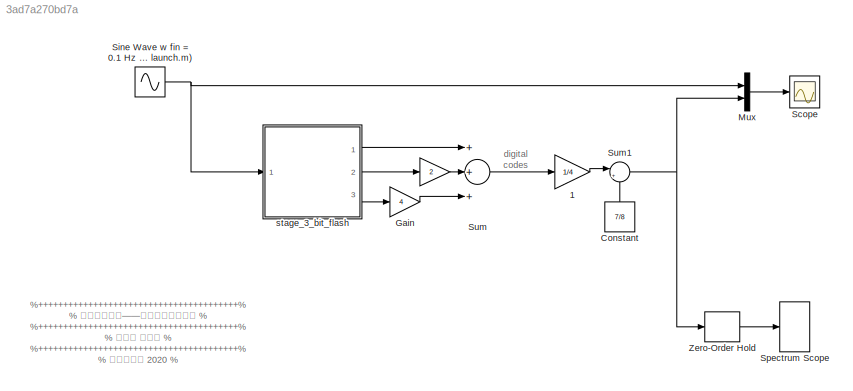
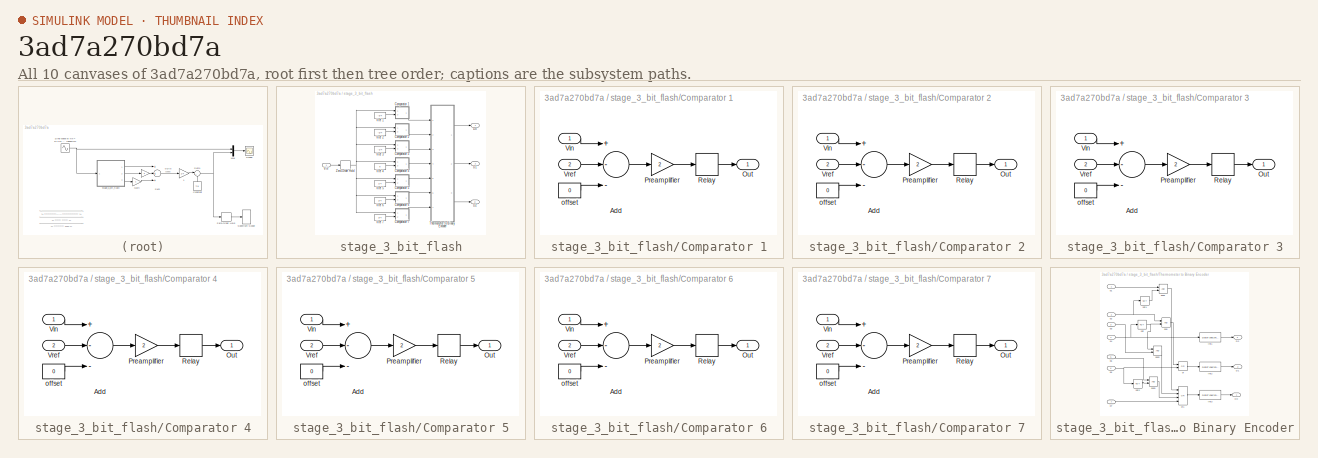
[diagram: thumbnail index - all 10 canvases of the model, root first then tree order]
MODEL slx_3ad7a270bd7a
KIND model
BLOCK [Gain]  
  Gain = 2
  OutDataTypeStr = Inherit: Inherit via internal rule
  ParamDataTypeStr = Inherit: Inherit via internal rule
  SaturateOnIntegerOverflow = off
BLOCK [Gain]  1
  Gain = 1/4
  OutDataTypeStr = Inherit: Inherit via internal rule
  ParamDataTypeStr = Inherit: Inherit via internal rule
  SaturateOnIntegerOverflow = off
BLOCK [Constant] Constant
  Value = 7/8
BLOCK [Gain] Gain
  Gain = 4
  OutDataTypeStr = Inherit: Inherit via internal rule
  ParamDataTypeStr = Inherit: Inherit via internal rule
  SaturateOnIntegerOverflow = off
BLOCK [Mux] Mux
  DisplayOption = bar
  Inputs = 2
  Ports = [2, 1]
BLOCK [Scope] Scope
  Floating = off
  MaxDataPoints = 50
  NumInputPorts = 1
  Ports = [1]
  SampleTime = 0
  SaveName = ScopeData1
  ShowLegends = off
  YMax = 1
  YMin = -1
BLOCK [Sin] Sine Wave w fin = 0.1 Hz (set in launch.m)
  Frequency = 2*pi*fin
  Ports = [0, 1]
  SampleTime = 0
BLOCK [SpectrumAnalyzer] Spectrum Scope
  Ports = [1]
  ScopeSpecificationString = spbscopes.SpectrumAnalyzerBlockCfg('CurrentConfiguration', extmgr.ConfigurationSet(extmgr.Configuration('Core','General UI',true),extmgr.Configuration('Core','Source UI',true),extmgr.Configuration('Sources','WiredSimulink',true),extmgr.Configuration('Sources','Simulink',false),extmgr.Configuration('Sources','File',false),extmgr.Configuration('Sources','Workspace',false),extmgr.Configuration('Sourc...<+6827ch>
BLOCK [Sum] Sum
  InputSameDT = off
  Inputs = +++
  OutDataTypeStr = Inherit: Inherit via internal rule
  Ports = [3, 1]
  SaturateOnIntegerOverflow = off
BLOCK [Sum] Sum1
  IconShape = round
  InputSameDT = off
  Inputs = |+-
  OutDataTypeStr = Inherit: Inherit via internal rule
  Ports = [2, 1]
  SaturateOnIntegerOverflow = off
BLOCK [ZeroOrderHold] Zero-Order Hold
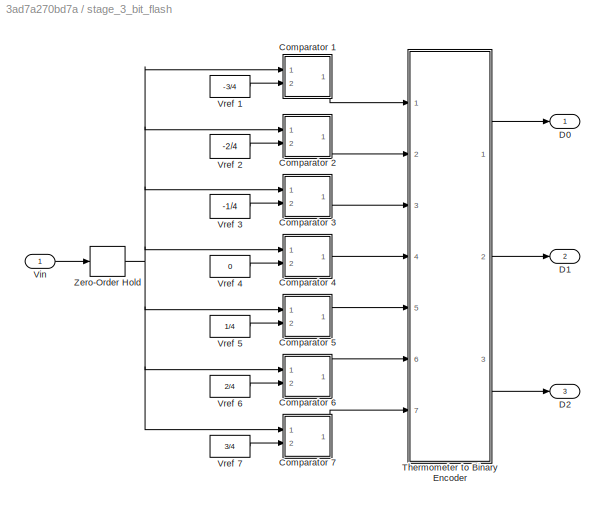
BLOCK [SubSystem] stage_3_bit_flash
  Ports = [1, 3]
  RequestExecContextInheritance = off
BLOCK [SubSystem] stage_3_bit_flash/Comparator 1
  Ports = [2, 1]
  RequestExecContextInheritance = off
BLOCK [Sum] stage_3_bit_flash/Comparator 1/Add
  InputSameDT = off
  Inputs = +--
  OutDataTypeStr = Inherit: Inherit via internal rule
  Ports = [3, 1]
  SaturateOnIntegerOverflow = off
BLOCK [Outport] stage_3_bit_flash/Comparator 1/Out
  IconDisplay = Port number
BLOCK [Gain] stage_3_bit_flash/Comparator 1/Preamplifier
  Gain = 2
  OutDataTypeStr = Inherit: Inherit via internal rule
  ParamDataTypeStr = Inherit: Inherit via internal rule
  SaturateOnIntegerOverflow = off
BLOCK [Relay] stage_3_bit_flash/Comparator 1/Relay
  OffSwitchValue = 0
  OnSwitchValue = 0
BLOCK [Inport] stage_3_bit_flash/Comparator 1/Vin
  IconDisplay = Port number
BLOCK [Inport] stage_3_bit_flash/Comparator 1/Vref
  IconDisplay = Port number
  Port = 2
BLOCK [Constant] stage_3_bit_flash/Comparator 1/offset
  Value = 0
BLOCK [SubSystem] stage_3_bit_flash/Comparator 2
  Ports = [2, 1]
  RequestExecContextInheritance = off
BLOCK [Sum] stage_3_bit_flash/Comparator 2/Add
  InputSameDT = off
  Inputs = +--
  OutDataTypeStr = Inherit: Inherit via internal rule
  Ports = [3, 1]
  SaturateOnIntegerOverflow = off
BLOCK [Outport] stage_3_bit_flash/Comparator 2/Out
  IconDisplay = Port number
BLOCK [Gain] stage_3_bit_flash/Comparator 2/Preamplifier
  Gain = 2
  OutDataTypeStr = Inherit: Inherit via internal rule
  ParamDataTypeStr = Inherit: Inherit via internal rule
  SaturateOnIntegerOverflow = off
BLOCK [Relay] stage_3_bit_flash/Comparator 2/Relay
  OffSwitchValue = 0
  OnSwitchValue = 0
BLOCK [Inport] stage_3_bit_flash/Comparator 2/Vin
  IconDisplay = Port number
BLOCK [Inport] stage_3_bit_flash/Comparator 2/Vref
  IconDisplay = Port number
  Port = 2
BLOCK [Constant] stage_3_bit_flash/Comparator 2/offset
  Value = 0
BLOCK [SubSystem] stage_3_bit_flash/Comparator 3
  Ports = [2, 1]
  RequestExecContextInheritance = off
BLOCK [Sum] stage_3_bit_flash/Comparator 3/Add
  InputSameDT = off
  Inputs = +--
  OutDataTypeStr = Inherit: Inherit via internal rule
  Ports = [3, 1]
  SaturateOnIntegerOverflow = off
BLOCK [Outport] stage_3_bit_flash/Comparator 3/Out
  IconDisplay = Port number
BLOCK [Gain] stage_3_bit_flash/Comparator 3/Preamplifier
  Gain = 2
  OutDataTypeStr = Inherit: Inherit via internal rule
  ParamDataTypeStr = Inherit: Inherit via internal rule
  SaturateOnIntegerOverflow = off
BLOCK [Relay] stage_3_bit_flash/Comparator 3/Relay
  OffSwitchValue = 0
  OnSwitchValue = 0
BLOCK [Inport] stage_3_bit_flash/Comparator 3/Vin
  IconDisplay = Port number
BLOCK [Inport] stage_3_bit_flash/Comparator 3/Vref
  IconDisplay = Port number
  Port = 2
BLOCK [Constant] stage_3_bit_flash/Comparator 3/offset
  Value = 0
BLOCK [SubSystem] stage_3_bit_flash/Comparator 4
  Ports = [2, 1]
  RequestExecContextInheritance = off
BLOCK [Sum] stage_3_bit_flash/Comparator 4/Add
  InputSameDT = off
  Inputs = +--
  OutDataTypeStr = Inherit: Inherit via internal rule
  Ports = [3, 1]
  SaturateOnIntegerOverflow = off
BLOCK [Outport] stage_3_bit_flash/Comparator 4/Out
  IconDisplay = Port number
BLOCK [Gain] stage_3_bit_flash/Comparator 4/Preamplifier
  Gain = 2
  OutDataTypeStr = Inherit: Inherit via internal rule
  ParamDataTypeStr = Inherit: Inherit via internal rule
  SaturateOnIntegerOverflow = off
BLOCK [Relay] stage_3_bit_flash/Comparator 4/Relay
  OffSwitchValue = 0
  OnSwitchValue = 0
BLOCK [Inport] stage_3_bit_flash/Comparator 4/Vin
  IconDisplay = Port number
BLOCK [Inport] stage_3_bit_flash/Comparator 4/Vref
  IconDisplay = Port number
  Port = 2
BLOCK [Constant] stage_3_bit_flash/Comparator 4/offset
  Value = 0
BLOCK [SubSystem] stage_3_bit_flash/Comparator 5
  Ports = [2, 1]
  RequestExecContextInheritance = off
BLOCK [Sum] stage_3_bit_flash/Comparator 5/Add
  InputSameDT = off
  Inputs = +--
  OutDataTypeStr = Inherit: Inherit via internal rule
  Ports = [3, 1]
  SaturateOnIntegerOverflow = off
BLOCK [Outport] stage_3_bit_flash/Comparator 5/Out
  IconDisplay = Port number
BLOCK [Gain] stage_3_bit_flash/Comparator 5/Preamplifier
  Gain = 2
  OutDataTypeStr = Inherit: Inherit via internal rule
  ParamDataTypeStr = Inherit: Inherit via internal rule
  SaturateOnIntegerOverflow = off
BLOCK [Relay] stage_3_bit_flash/Comparator 5/Relay
  OffSwitchValue = 0
  OnSwitchValue = 0
BLOCK [Inport] stage_3_bit_flash/Comparator 5/Vin
  IconDisplay = Port number
BLOCK [Inport] stage_3_bit_flash/Comparator 5/Vref
  IconDisplay = Port number
  Port = 2
BLOCK [Constant] stage_3_bit_flash/Comparator 5/offset
  Value = 0
BLOCK [SubSystem] stage_3_bit_flash/Comparator 6
  Ports = [2, 1]
  RequestExecContextInheritance = off
BLOCK [Sum] stage_3_bit_flash/Comparator 6/Add
  InputSameDT = off
  Inputs = +--
  OutDataTypeStr = Inherit: Inherit via internal rule
  Ports = [3, 1]
  SaturateOnIntegerOverflow = off
BLOCK [Outport] stage_3_bit_flash/Comparator 6/Out
  IconDisplay = Port number
BLOCK [Gain] stage_3_bit_flash/Comparator 6/Preamplifier
  Gain = 2
  OutDataTypeStr = Inherit: Inherit via internal rule
  ParamDataTypeStr = Inherit: Inherit via internal rule
  SaturateOnIntegerOverflow = off
BLOCK [Relay] stage_3_bit_flash/Comparator 6/Relay
  OffSwitchValue = 0
  OnSwitchValue = 0
BLOCK [Inport] stage_3_bit_flash/Comparator 6/Vin
  IconDisplay = Port number
BLOCK [Inport] stage_3_bit_flash/Comparator 6/Vref
  IconDisplay = Port number
  Port = 2
BLOCK [Constant] stage_3_bit_flash/Comparator 6/offset
  Value = 0
BLOCK [SubSystem] stage_3_bit_flash/Comparator 7
  Ports = [2, 1]
  RequestExecContextInheritance = off
BLOCK [Sum] stage_3_bit_flash/Comparator 7/Add
  InputSameDT = off
  Inputs = +--
  OutDataTypeStr = Inherit: Inherit via internal rule
  Ports = [3, 1]
  SaturateOnIntegerOverflow = off
BLOCK [Outport] stage_3_bit_flash/Comparator 7/Out
  IconDisplay = Port number
BLOCK [Gain] stage_3_bit_flash/Comparator 7/Preamplifier
  Gain = 2
  OutDataTypeStr = Inherit: Inherit via internal rule
  ParamDataTypeStr = Inherit: Inherit via internal rule
  SaturateOnIntegerOverflow = off
BLOCK [Relay] stage_3_bit_flash/Comparator 7/Relay
  OffSwitchValue = 0
  OnSwitchValue = 0
BLOCK [Inport] stage_3_bit_flash/Comparator 7/Vin
  IconDisplay = Port number
BLOCK [Inport] stage_3_bit_flash/Comparator 7/Vref
  IconDisplay = Port number
  Port = 2
BLOCK [Constant] stage_3_bit_flash/Comparator 7/offset
  Value = 0
BLOCK [Outport] stage_3_bit_flash/D0
  IconDisplay = Port number
BLOCK [Outport] stage_3_bit_flash/D1
  IconDisplay = Port number
  Port = 2
BLOCK [Outport] stage_3_bit_flash/D2
  IconDisplay = Port number
  Port = 3
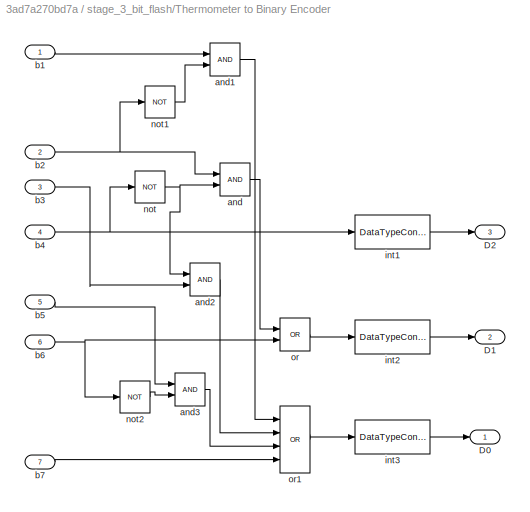
BLOCK [SubSystem] stage_3_bit_flash/Thermometer to Binary Encoder
  Ports = [7, 3]
  RequestExecContextInheritance = off
BLOCK [Outport] stage_3_bit_flash/Thermometer to Binary Encoder/D0
  IconDisplay = Port number
BLOCK [Outport] stage_3_bit_flash/Thermometer to Binary Encoder/D1
  IconDisplay = Port number
  Port = 2
BLOCK [Outport] stage_3_bit_flash/Thermometer to Binary Encoder/D2
  IconDisplay = Port number
  Port = 3
BLOCK [Logic] stage_3_bit_flash/Thermometer to Binary Encoder/and
  AllPortsSameDT = off
  OutDataTypeStr = boolean
  Ports = [2, 1]
BLOCK [Logic] stage_3_bit_flash/Thermometer to Binary Encoder/and1
  AllPortsSameDT = off
  OutDataTypeStr = boolean
  Ports = [2, 1]
BLOCK [Logic] stage_3_bit_flash/Thermometer to Binary Encoder/and2
  AllPortsSameDT = off
  OutDataTypeStr = boolean
  Ports = [2, 1]
BLOCK [Logic] stage_3_bit_flash/Thermometer to Binary Encoder/and3
  AllPortsSameDT = off
  OutDataTypeStr = boolean
  Ports = [2, 1]
BLOCK [Inport] stage_3_bit_flash/Thermometer to Binary Encoder/b1
  IconDisplay = Port number
BLOCK [Inport] stage_3_bit_flash/Thermometer to Binary Encoder/b2
  IconDisplay = Port number
  Port = 2
BLOCK [Inport] stage_3_bit_flash/Thermometer to Binary Encoder/b3
  IconDisplay = Port number
  Port = 3
BLOCK [Inport] stage_3_bit_flash/Thermometer to Binary Encoder/b4
  IconDisplay = Port number
  Port = 4
BLOCK [Inport] stage_3_bit_flash/Thermometer to Binary Encoder/b5
  IconDisplay = Port number
  Port = 5
BLOCK [Inport] stage_3_bit_flash/Thermometer to Binary Encoder/b6
  IconDisplay = Port number
  Port = 6
BLOCK [Inport] stage_3_bit_flash/Thermometer to Binary Encoder/b7
  IconDisplay = Port number
  Port = 7
BLOCK [DataTypeConversion] stage_3_bit_flash/Thermometer to Binary Encoder/int1
  OutDataTypeStr = int8
  RndMeth = Floor
  SaturateOnIntegerOverflow = off
BLOCK [DataTypeConversion] stage_3_bit_flash/Thermometer to Binary Encoder/int2
  OutDataTypeStr = int8
  RndMeth = Floor
  SaturateOnIntegerOverflow = off
BLOCK [DataTypeConversion] stage_3_bit_flash/Thermometer to Binary Encoder/int3
  OutDataTypeStr = int8
  RndMeth = Floor
  SaturateOnIntegerOverflow = off
BLOCK [Logic] stage_3_bit_flash/Thermometer to Binary Encoder/not
  AllPortsSameDT = off
  Operator = NOT
  OutDataTypeStr = boolean
  Ports = [1, 1]
BLOCK [Logic] stage_3_bit_flash/Thermometer to Binary Encoder/not1
  AllPortsSameDT = off
  Operator = NOT
  OutDataTypeStr = boolean
  Ports = [1, 1]
BLOCK [Logic] stage_3_bit_flash/Thermometer to Binary Encoder/not2
  AllPortsSameDT = off
  Operator = NOT
  OutDataTypeStr = boolean
  Ports = [1, 1]
BLOCK [Logic] stage_3_bit_flash/Thermometer to Binary Encoder/or
  AllPortsSameDT = off
  Operator = OR
  OutDataTypeStr = boolean
  Ports = [2, 1]
BLOCK [Logic] stage_3_bit_flash/Thermometer to Binary Encoder/or1
  AllPortsSameDT = off
  Inputs = 4
  Operator = OR
  OutDataTypeStr = boolean
  Ports = [4, 1]
BLOCK [Inport] stage_3_bit_flash/Vin
  IconDisplay = Port number
BLOCK [Constant] stage_3_bit_flash/Vref 1
  Value = -3/4
BLOCK [Constant] stage_3_bit_flash/Vref 2
  Value = -2/4
BLOCK [Constant] stage_3_bit_flash/Vref 3
  Value = -1/4
BLOCK [Constant] stage_3_bit_flash/Vref 4
  Value = 0
BLOCK [Constant] stage_3_bit_flash/Vref 5
  Value = 1/4
BLOCK [Constant] stage_3_bit_flash/Vref 6
  Value = 2/4
BLOCK [Constant] stage_3_bit_flash/Vref 7
  Value = 3/4
BLOCK [ZeroOrderHold] stage_3_bit_flash/Zero-Order Hold
  SampleTime = ts
ANNOTATION (root): %++++++++++++++++++++++++++++++++++++++++% % 模拟电路基础——从系统级到电路级 % %++++++++++++++++++++++++++++++++++++++++% % 陈抗生 周金芳 % %++++++++++++++++++++++++++++++++++++++++% % 科学出版社 2020 % %++++++++++++++++++++++++++++++++++++++++%
ANNOTATION (root): digital codes
LINE  1:1 -> Sum1:1
LINE  :1 -> Sum:2
LINE Constant:1 -> Sum1:2
LINE Gain:1 -> Sum:3
LINE Mux:1 -> Scope:1
NET Sine Wave w fin = 0.1 Hz (set in launch.m):1 -> Mux:1, stage_3_bit_flash:1
NET Sum1:1 -> Mux:2, Zero-Order Hold:1
LINE Sum:1 ->  1:1
LINE Zero-Order Hold:1 -> Spectrum Scope:1
LINE stage_3_bit_flash/Comparator 1/Add:1 -> stage_3_bit_flash/Comparator 1/Preamplifier:1
LINE stage_3_bit_flash/Comparator 1/Preamplifier:1 -> stage_3_bit_flash/Comparator 1/Relay:1
LINE stage_3_bit_flash/Comparator 1/Relay:1 -> stage_3_bit_flash/Comparator 1/Out:1
LINE stage_3_bit_flash/Comparator 1/Vin:1 -> stage_3_bit_flash/Comparator 1/Add:1
LINE stage_3_bit_flash/Comparator 1/Vref:1 -> stage_3_bit_flash/Comparator 1/Add:2
LINE stage_3_bit_flash/Comparator 1/offset:1 -> stage_3_bit_flash/Comparator 1/Add:3
LINE stage_3_bit_flash/Comparator 1:1 -> stage_3_bit_flash/Thermometer to Binary Encoder:1
LINE stage_3_bit_flash/Comparator 2/Add:1 -> stage_3_bit_flash/Comparator 2/Preamplifier:1
LINE stage_3_bit_flash/Comparator 2/Preamplifier:1 -> stage_3_bit_flash/Comparator 2/Relay:1
LINE stage_3_bit_flash/Comparator 2/Relay:1 -> stage_3_bit_flash/Comparator 2/Out:1
LINE stage_3_bit_flash/Comparator 2/Vin:1 -> stage_3_bit_flash/Comparator 2/Add:1
LINE stage_3_bit_flash/Comparator 2/Vref:1 -> stage_3_bit_flash/Comparator 2/Add:2
LINE stage_3_bit_flash/Comparator 2/offset:1 -> stage_3_bit_flash/Comparator 2/Add:3
LINE stage_3_bit_flash/Comparator 2:1 -> stage_3_bit_flash/Thermometer to Binary Encoder:2
LINE stage_3_bit_flash/Comparator 3/Add:1 -> stage_3_bit_flash/Comparator 3/Preamplifier:1
LINE stage_3_bit_flash/Comparator 3/Preamplifier:1 -> stage_3_bit_flash/Comparator 3/Relay:1
LINE stage_3_bit_flash/Comparator 3/Relay:1 -> stage_3_bit_flash/Comparator 3/Out:1
LINE stage_3_bit_flash/Comparator 3/Vin:1 -> stage_3_bit_flash/Comparator 3/Add:1
LINE stage_3_bit_flash/Comparator 3/Vref:1 -> stage_3_bit_flash/Comparator 3/Add:2
LINE stage_3_bit_flash/Comparator 3/offset:1 -> stage_3_bit_flash/Comparator 3/Add:3
LINE stage_3_bit_flash/Comparator 3:1 -> stage_3_bit_flash/Thermometer to Binary Encoder:3
LINE stage_3_bit_flash/Comparator 4/Add:1 -> stage_3_bit_flash/Comparator 4/Preamplifier:1
LINE stage_3_bit_flash/Comparator 4/Preamplifier:1 -> stage_3_bit_flash/Comparator 4/Relay:1
LINE stage_3_bit_flash/Comparator 4/Relay:1 -> stage_3_bit_flash/Comparator 4/Out:1
LINE stage_3_bit_flash/Comparator 4/Vin:1 -> stage_3_bit_flash/Comparator 4/Add:1
LINE stage_3_bit_flash/Comparator 4/Vref:1 -> stage_3_bit_flash/Comparator 4/Add:2
LINE stage_3_bit_flash/Comparator 4/offset:1 -> stage_3_bit_flash/Comparator 4/Add:3
LINE stage_3_bit_flash/Comparator 4:1 -> stage_3_bit_flash/Thermometer to Binary Encoder:4
LINE stage_3_bit_flash/Comparator 5/Add:1 -> stage_3_bit_flash/Comparator 5/Preamplifier:1
LINE stage_3_bit_flash/Comparator 5/Preamplifier:1 -> stage_3_bit_flash/Comparator 5/Relay:1
LINE stage_3_bit_flash/Comparator 5/Relay:1 -> stage_3_bit_flash/Comparator 5/Out:1
LINE stage_3_bit_flash/Comparator 5/Vin:1 -> stage_3_bit_flash/Comparator 5/Add:1
LINE stage_3_bit_flash/Comparator 5/Vref:1 -> stage_3_bit_flash/Comparator 5/Add:2
LINE stage_3_bit_flash/Comparator 5/offset:1 -> stage_3_bit_flash/Comparator 5/Add:3
LINE stage_3_bit_flash/Comparator 5:1 -> stage_3_bit_flash/Thermometer to Binary Encoder:5
LINE stage_3_bit_flash/Comparator 6/Add:1 -> stage_3_bit_flash/Comparator 6/Preamplifier:1
LINE stage_3_bit_flash/Comparator 6/Preamplifier:1 -> stage_3_bit_flash/Comparator 6/Relay:1
LINE stage_3_bit_flash/Comparator 6/Relay:1 -> stage_3_bit_flash/Comparator 6/Out:1
LINE stage_3_bit_flash/Comparator 6/Vin:1 -> stage_3_bit_flash/Comparator 6/Add:1
LINE stage_3_bit_flash/Comparator 6/Vref:1 -> stage_3_bit_flash/Comparator 6/Add:2
LINE stage_3_bit_flash/Comparator 6/offset:1 -> stage_3_bit_flash/Comparator 6/Add:3
LINE stage_3_bit_flash/Comparator 6:1 -> stage_3_bit_flash/Thermometer to Binary Encoder:6
LINE stage_3_bit_flash/Comparator 7/Add:1 -> stage_3_bit_flash/Comparator 7/Preamplifier:1
LINE stage_3_bit_flash/Comparator 7/Preamplifier:1 -> stage_3_bit_flash/Comparator 7/Relay:1
LINE stage_3_bit_flash/Comparator 7/Relay:1 -> stage_3_bit_flash/Comparator 7/Out:1
LINE stage_3_bit_flash/Comparator 7/Vin:1 -> stage_3_bit_flash/Comparator 7/Add:1
LINE stage_3_bit_flash/Comparator 7/Vref:1 -> stage_3_bit_flash/Comparator 7/Add:2
LINE stage_3_bit_flash/Comparator 7/offset:1 -> stage_3_bit_flash/Comparator 7/Add:3
LINE stage_3_bit_flash/Comparator 7:1 -> stage_3_bit_flash/Thermometer to Binary Encoder:7
LINE stage_3_bit_flash/Thermometer to Binary Encoder/and1:1 -> stage_3_bit_flash/Thermometer to Binary Encoder/or1:1
LINE stage_3_bit_flash/Thermometer to Binary Encoder/and2:1 -> stage_3_bit_flash/Thermometer to Binary Encoder/or1:2
LINE stage_3_bit_flash/Thermometer to Binary Encoder/and3:1 -> stage_3_bit_flash/Thermometer to Binary Encoder/or1:3
LINE stage_3_bit_flash/Thermometer to Binary Encoder/and:1 -> stage_3_bit_flash/Thermometer to Binary Encoder/or:1
LINE stage_3_bit_flash/Thermometer to Binary Encoder/b1:1 -> stage_3_bit_flash/Thermometer to Binary Encoder/and1:1
NET stage_3_bit_flash/Thermometer to Binary Encoder/b2:1 -> stage_3_bit_flash/Thermometer to Binary Encoder/and:1, stage_3_bit_flash/Thermometer to Binary Encoder/not1:1
LINE stage_3_bit_flash/Thermometer to Binary Encoder/b3:1 -> stage_3_bit_flash/Thermometer to Binary Encoder/and2:2
NET stage_3_bit_flash/Thermometer to Binary Encoder/b4:1 -> stage_3_bit_flash/Thermometer to Binary Encoder/int1:1, stage_3_bit_flash/Thermometer to Binary Encoder/not:1
LINE stage_3_bit_flash/Thermometer to Binary Encoder/b5:1 -> stage_3_bit_flash/Thermometer to Binary Encoder/and3:1
NET stage_3_bit_flash/Thermometer to Binary Encoder/b6:1 -> stage_3_bit_flash/Thermometer to Binary Encoder/not2:1, stage_3_bit_flash/Thermometer to Binary Encoder/or:2
LINE stage_3_bit_flash/Thermometer to Binary Encoder/b7:1 -> stage_3_bit_flash/Thermometer to Binary Encoder/or1:4
LINE stage_3_bit_flash/Thermometer to Binary Encoder/int1:1 -> stage_3_bit_flash/Thermometer to Binary Encoder/D2:1
LINE stage_3_bit_flash/Thermometer to Binary Encoder/int2:1 -> stage_3_bit_flash/Thermometer to Binary Encoder/D1:1
LINE stage_3_bit_flash/Thermometer to Binary Encoder/int3:1 -> stage_3_bit_flash/Thermometer to Binary Encoder/D0:1
LINE stage_3_bit_flash/Thermometer to Binary Encoder/not1:1 -> stage_3_bit_flash/Thermometer to Binary Encoder/and1:2
LINE stage_3_bit_flash/Thermometer to Binary Encoder/not2:1 -> stage_3_bit_flash/Thermometer to Binary Encoder/and3:2
NET stage_3_bit_flash/Thermometer to Binary Encoder/not:1 -> stage_3_bit_flash/Thermometer to Binary Encoder/and2:1, stage_3_bit_flash/Thermometer to Binary Encoder/and:2
LINE stage_3_bit_flash/Thermometer to Binary Encoder/or1:1 -> stage_3_bit_flash/Thermometer to Binary Encoder/int3:1
LINE stage_3_bit_flash/Thermometer to Binary Encoder/or:1 -> stage_3_bit_flash/Thermometer to Binary Encoder/int2:1
LINE stage_3_bit_flash/Thermometer to Binary Encoder:1 -> stage_3_bit_flash/D0:1
LINE stage_3_bit_flash/Thermometer to Binary Encoder:2 -> stage_3_bit_flash/D1:1
LINE stage_3_bit_flash/Thermometer to Binary Encoder:3 -> stage_3_bit_flash/D2:1
LINE stage_3_bit_flash/Vin:1 -> stage_3_bit_flash/Zero-Order Hold:1
LINE stage_3_bit_flash/Vref 1:1 -> stage_3_bit_flash/Comparator 1:2
LINE stage_3_bit_flash/Vref 2:1 -> stage_3_bit_flash/Comparator 2:2
LINE stage_3_bit_flash/Vref 3:1 -> stage_3_bit_flash/Comparator 3:2
LINE stage_3_bit_flash/Vref 4:1 -> stage_3_bit_flash/Comparator 4:2
LINE stage_3_bit_flash/Vref 5:1 -> stage_3_bit_flash/Comparator 5:2
LINE stage_3_bit_flash/Vref 6:1 -> stage_3_bit_flash/Comparator 6:2
LINE stage_3_bit_flash/Vref 7:1 -> stage_3_bit_flash/Comparator 7:2
NET stage_3_bit_flash/Zero-Order Hold:1 -> stage_3_bit_flash/Comparator 1:1, stage_3_bit_flash/Comparator 2:1, stage_3_bit_flash/Comparator 3:1, stage_3_bit_flash/Comparator 4:1, stage_3_bit_flash/Comparator 5:1, stage_3_bit_flash/Comparator 6:1, stage_3_bit_flash/Comparator 7:1
LINE stage_3_bit_flash:1 -> Sum:1
LINE stage_3_bit_flash:2 ->  :1
LINE stage_3_bit_flash:3 -> Gain:1
note: NET lines group one-source signal fan-out (src -> all destinations, sorted); 1:1 wires keep LINE
